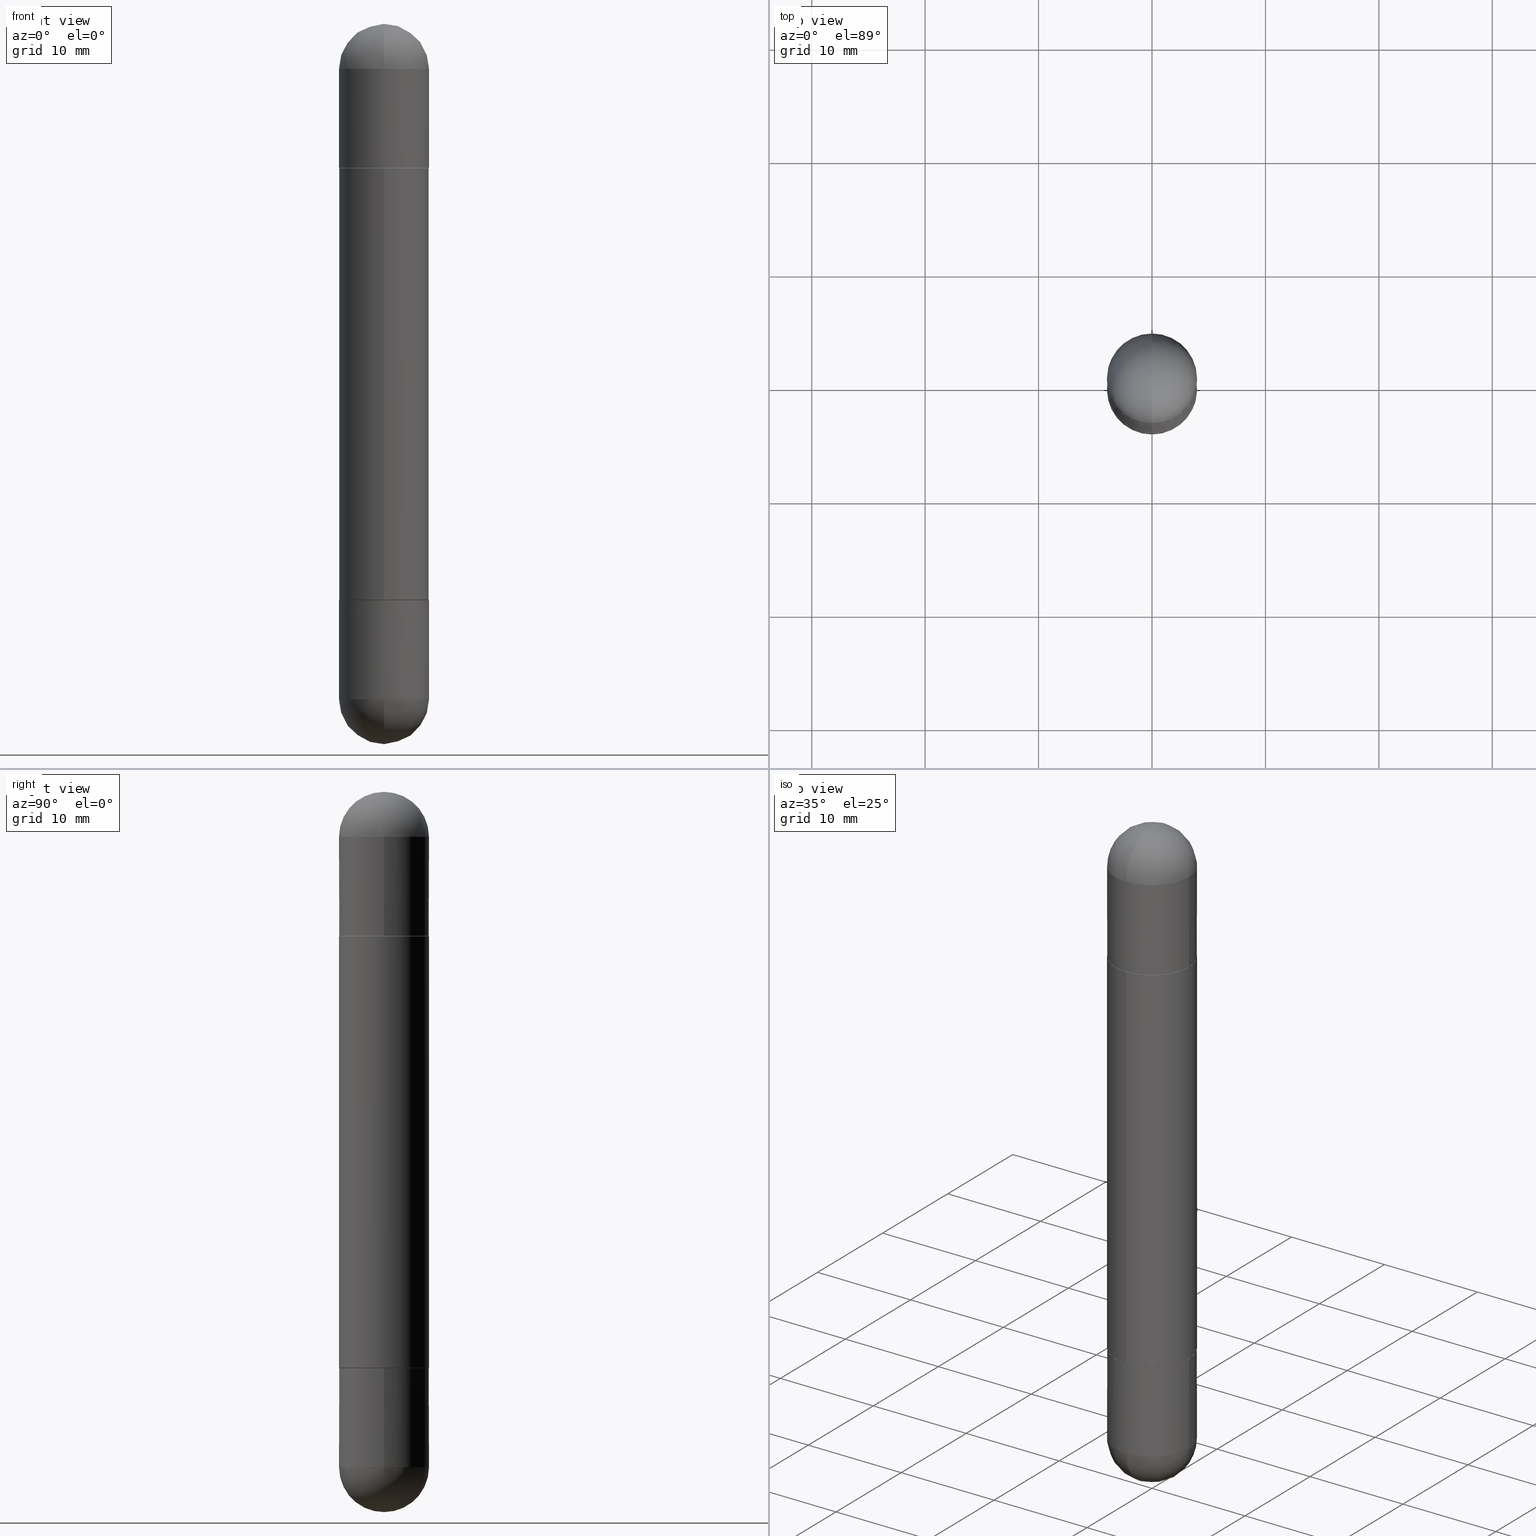
[diagram: canonical four-view strip — front | top / right | iso, engineering-drawing reading convention]
A machine part, canonical four-view strip (front | top / right | iso — engineering-drawing reading convention). The complete STEP part file that produces these views, byte-faithful:
ISO-10303-21;
HEADER;
FILE_DESCRIPTION (( 'STEP AP203' ),
    '1' );
FILE_NAME ('39634.STEP',
    '2024-03-01T12:43:34',
    ( '' ),
    ( '' ),
    'SwSTEP 2.0',
    'SolidWorks 2023',
    '' );
FILE_SCHEMA (( 'CONFIG_CONTROL_DESIGN' ));
ENDSEC;

DATA;
#1 = ORIENTED_EDGE ( 'NONE', *, *, #153, .F. ) ;
#2 = ORIENTED_EDGE ( 'NONE', *, *, #439, .F. ) ;
#3 = ORIENTED_EDGE ( 'NONE', *, *, #476, .T. ) ;
#4 = PERSON_AND_ORGANIZATION_ROLE ( 'design_owner' ) ;
#5 = ADVANCED_FACE ( 'NONE', ( #394 ), #583, .F. ) ;
#6 = AXIS2_PLACEMENT_3D ( 'NONE', #740, #366, #409 ) ;
#7 = CARTESIAN_POINT ( 'NONE',  ( 4.887936516085075525E-29, -6.980266886521744924E-15, -1.998999999999999888 ) ) ;
#8 = EDGE_CURVE ( 'NONE', #523, #546, #83, .T. ) ;
#9 = AXIS2_PLACEMENT_3D ( 'NONE', #92, #533, #404 ) ;
#10 = EDGE_CURVE ( 'NONE', #573, #451, #263, .T. ) ;
#11 = ORIENTED_EDGE ( 'NONE', *, *, #657, .T. ) ;
#12 = CARTESIAN_POINT ( 'NONE',  ( 5.789233224183170584E-29, -9.193318162129576161E-15, -3.073328992872296367E-16 ) ) ;
#13 = EDGE_CURVE ( 'NONE', #764, #256, #341, .T. ) ;
#14 = DIRECTION ( 'NONE',  ( 6.982962677686265922E-15, 1.000000000000000000, -3.496765431890251398E-15 ) ) ;
#15 = DIRECTION ( 'NONE',  ( -1.000000000000000000, 7.105427357601001070E-15, -4.926315508542082329E-29 ) ) ;
#16 = ORIENTED_EDGE ( 'NONE', *, *, #597, .F. ) ;
#17 = PLANE ( 'NONE',  #414 ) ;
#18 = DIRECTION ( 'NONE',  ( 1.000000000000000000, -6.982962677686269077E-15, 0.000000000000000000 ) ) ;
#19 = ORIENTED_EDGE ( 'NONE', *, *, #741, .T. ) ;
#20 = AXIS2_PLACEMENT_3D ( 'NONE', #459, #405, #663 ) ;
#21 = CIRCLE ( 'NONE', #629, 0.1562500000000000000 ) ;
#22 = LOCAL_TIME ( 7, 43, 34.00000000000000000, #367 ) ;
#23 = DIRECTION ( 'NONE',  ( -6.982962677686265922E-15, -1.000000000000000000, 0.000000000000000000 ) ) ;
#24 = CARTESIAN_POINT ( 'NONE',  ( 1.071952812151802595E-15, 0.1562500000000001388, -2.500000000000000000 ) ) ;
#25 = ORIENTED_EDGE ( 'NONE', *, *, #593, .T. ) ;
#26 = DIRECTION ( 'NONE',  ( 1.000000000000000000, -6.982962677686262766E-15, 0.000000000000000000 ) ) ;
#27 = CARTESIAN_POINT ( 'NONE',  ( 1.065092314154079104E-15, 0.1552499999999930047, -0.4999999999999998335 ) ) ;
#28 = DIRECTION ( 'NONE',  ( 1.000000000000000000, -6.982962677686269077E-15, 0.000000000000000000 ) ) ;
#29 = EDGE_CURVE ( 'NONE', #66, #622, #276, .T. ) ;
#30 = CARTESIAN_POINT ( 'NONE',  ( 0.000000000000000000, 0.000000000000000000, -2.500000000000000444 ) ) ;
#31 = VECTOR ( 'NONE', #727, 39.37007874015748143 ) ;
#32 = VERTEX_POINT ( 'NONE', #395 ) ;
#33 = EDGE_CURVE ( 'NONE', #238, #249, #285, .T. ) ;
#34 = VECTOR ( 'NONE', #482, 39.37007874015748854 ) ;
#35 = DIRECTION ( 'NONE',  ( -2.445190853469272491E-29, 3.491879382952348982E-15, -1.000000000000000000 ) ) ;
#36 = LOCAL_TIME ( 7, 43, 34.00000000000000000, #195 ) ;
#37 = DIRECTION ( 'NONE',  ( -2.445468806185136597E-29, 3.491481338843145583E-15, 1.000000000000000000 ) ) ;
#38 = CARTESIAN_POINT ( 'NONE',  ( 4.890381706938546103E-29, -6.983758765904698753E-15, -2.000000000000000444 ) ) ;
#39 = ORIENTED_EDGE ( 'NONE', *, *, #29, .T. ) ;
#40 = FACE_OUTER_BOUND ( 'NONE', #744, .T. ) ;
#41 = DIRECTION ( 'NONE',  ( -2.445190853469272491E-29, 3.491879382952348982E-15, -1.000000000000000000 ) ) ;
#42 = EDGE_CURVE ( 'NONE', #206, #325, #124, .T. ) ;
#43 = CARTESIAN_POINT ( 'NONE',  ( 5.731567514496413899E-29, -8.183159387913622595E-15, -0.1562500000000005551 ) ) ;
#44 = CARTESIAN_POINT ( 'NONE',  ( 5.789233224183170584E-29, -9.193318162129576161E-15, -3.073328992872296367E-16 ) ) ;
#45 = AXIS2_PLACEMENT_3D ( 'NONE', #550, #680, #474 ) ;
#46 = EDGE_LOOP ( 'NONE', ( #675, #300, #380, #811 ) ) ;
#47 = CIRCLE ( 'NONE', #714, 0.1552499999999999991 ) ;
#48 = AXIS2_PLACEMENT_3D ( 'NONE', #95, #679, #668 ) ;
#49 = FACE_OUTER_BOUND ( 'NONE', #619, .T. ) ;
#50 = VECTOR ( 'NONE', #264, 39.37007874015748143 ) ;
#51 = CARTESIAN_POINT ( 'NONE',  ( -0.1562500000000000000, -6.511108220648155468E-15, -0.5000000000000006661 ) ) ;
#52 = CARTESIAN_POINT ( 'NONE',  ( -1.091087918388432039E-15, -0.1562500000000072720, -0.5010000000000013332 ) ) ;
#53 = FACE_OUTER_BOUND ( 'NONE', #46, .T. ) ;
#54 = ORIENTED_EDGE ( 'NONE', *, *, #432, .F. ) ;
#55 = DATE_AND_TIME ( #620, #22 ) ;
#56 = DIRECTION ( 'NONE',  ( -2.445190853469272211E-29, 3.491879382952348982E-15, 1.000000000000000000 ) ) ;
#57 = EDGE_CURVE ( 'NONE', #631, #369, #720, .T. ) ;
#58 = CC_DESIGN_DATE_AND_TIME_ASSIGNMENT ( #55, #559, ( #222 ) ) ;
#59 = VERTEX_POINT ( 'NONE', #776 ) ;
#60 = CARTESIAN_POINT ( 'NONE',  ( 4.890381706938546103E-29, -6.983758765904698753E-15, -2.000000000000000444 ) ) ;
#61 = CIRCLE ( 'NONE', #480, 0.1562500000000002776 ) ;
#62 = AXIS2_PLACEMENT_3D ( 'NONE', #387, #503, #696 ) ;
#63 = LINE ( 'NONE', #318, #736 ) ;
#64 = CC_DESIGN_SECURITY_CLASSIFICATION ( #402, ( #165 ) ) ;
#65 = ORIENTED_EDGE ( 'NONE', *, *, #33, .T. ) ;
#66 = VERTEX_POINT ( 'NONE', #401 ) ;
#67 = LINE ( 'NONE', #616, #50 ) ;
#68 = CARTESIAN_POINT ( 'NONE',  ( 1.106670310946405735E-15, 0.1552499999999930047, -2.000000000000000888 ) ) ;
#69 = ORIENTED_EDGE ( 'NONE', *, *, #385, .T. ) ;
#70 = EDGE_LOOP ( 'NONE', ( #812, #183 ) ) ;
#71 = DIRECTION ( 'NONE',  ( -4.937700262164378437E-15, -0.7071067811865208164, 0.7071067811865739960 ) ) ;
#72 = ADVANCED_FACE ( 'NONE', ( #717 ), #93, .T. ) ;
#73 = ORIENTED_EDGE ( 'NONE', *, *, #175, .F. ) ;
#74 = FACE_OUTER_BOUND ( 'NONE', #694, .T. ) ;
#75 = APPROVAL ( #427, 'UNSPECIFIED' ) ;
#76 = ORIENTED_EDGE ( 'NONE', *, *, #329, .T. ) ;
#77 = AXIS2_PLACEMENT_3D ( 'NONE', #113, #423, #290 ) ;
#78 = FACE_OUTER_BOUND ( 'NONE', #90, .T. ) ;
#79 = CIRCLE ( 'NONE', #297, 0.1562500000000002776 ) ;
#80 = EDGE_LOOP ( 'NONE', ( #118, #321 ) ) ;
#81 = FACE_OUTER_BOUND ( 'NONE', #80, .T. ) ;
#82 = EDGE_LOOP ( 'NONE', ( #436, #298, #11, #69 ) ) ;
#83 = LINE ( 'NONE', #334, #411 ) ;
#84 = APPLICATION_CONTEXT ( 'configuration controlled 3d designs of mechanical parts and assemblies' ) ;
#85 = CARTESIAN_POINT ( 'NONE',  ( 1.071952812151852491E-15, 0.1562499999999932832, -0.5010000000000002229 ) ) ;
#86 = CARTESIAN_POINT ( 'NONE',  ( -1.084104955710744053E-15, -0.1552500000000069935, -1.999999999999999778 ) ) ;
#87 = DATE_AND_TIME ( #386, #444 ) ;
#88 = DIRECTION ( 'NONE',  ( -2.445190853469272491E-29, 3.491879382952348982E-15, -1.000000000000000000 ) ) ;
#89 = CARTESIAN_POINT ( 'NONE',  ( 5.400447736582527652E-29, -8.657341756053672891E-15, -2.343750000000000000 ) ) ;
#90 = EDGE_LOOP ( 'NONE', ( #565, #554, #770, #370 ) ) ;
#91 = AXIS2_PLACEMENT_3D ( 'NONE', #595, #337, #649 ) ;
#92 = CARTESIAN_POINT ( 'NONE',  ( 5.400447736582527652E-29, -8.657341756053672891E-15, -2.343750000000000000 ) ) ;
#93 = CYLINDRICAL_SURFACE ( 'NONE', #327, 0.1562500000000000000 ) ;
#94 = ADVANCED_FACE ( 'NONE', ( #157 ), #522, .F. ) ;
#95 = CARTESIAN_POINT ( 'NONE',  ( 3.056488566836591455E-29, -4.364849228690437312E-15, -1.250000000000000222 ) ) ;
#96 = LINE ( 'NONE', #27, #389 ) ;
#97 = EDGE_CURVE ( 'NONE', #624, #59, #574, .T. ) ;
#98 = CARTESIAN_POINT ( 'NONE',  ( -1.091087918388432039E-15, -0.1562500000000072720, -0.5010000000000013332 ) ) ;
#99 = CARTESIAN_POINT ( 'NONE',  ( 0.1562500000000000000, -1.091087918388479174E-15, -2.500000000000000444 ) ) ;
#100 = CIRCLE ( 'NONE', #209, 0.1562500000000000000 ) ;
#101 = EDGE_CURVE ( 'NONE', #622, #325, #723, .T. ) ;
#102 = ORIENTED_EDGE ( 'NONE', *, *, #129, .F. ) ;
#103 = DIRECTION ( 'NONE',  ( 2.445468806185136597E-29, -3.491481338843145583E-15, 1.000000000000000000 ) ) ;
#104 = FACE_OUTER_BOUND ( 'NONE', #429, .T. ) ;
#105 = DIRECTION ( 'NONE',  ( -6.982962677686265922E-15, -1.000000000000000000, -3.519288880726909138E-15 ) ) ;
#106 = ORIENTED_EDGE ( 'NONE', *, *, #766, .T. ) ;
#107 = CARTESIAN_POINT ( 'NONE',  ( 1.103117597267604244E-15, 0.1552499999999930047, -2.000000000000000888 ) ) ;
#108 = DIRECTION ( 'NONE',  ( -2.445468806185136597E-29, 3.491481338843145583E-15, 1.000000000000000000 ) ) ;
#109 = FACE_OUTER_BOUND ( 'NONE', #608, .T. ) ;
#110 = CIRCLE ( 'NONE', #6, 0.1552499999999999991 ) ;
#111 = AXIS2_PLACEMENT_3D ( 'NONE', #43, #242, #284 ) ;
#112 = SPHERICAL_SURFACE ( 'NONE', #589, 0.1562500000000002498 ) ;
#113 = CARTESIAN_POINT ( 'NONE',  ( 5.400447736582527652E-29, -8.657341756053672891E-15, -0.1562500000000005551 ) ) ;
#114 = ORIENTED_EDGE ( 'NONE', *, *, #594, .F. ) ;
#115 = EDGE_CURVE ( 'NONE', #274, #388, #150, .T. ) ;
#116 = APPROVAL_DATE_TIME ( #506, #75 ) ;
#117 = CARTESIAN_POINT ( 'NONE',  ( 1.071952812151851110E-15, 0.1562499999999957812, -1.250000000000000222 ) ) ;
#118 = ORIENTED_EDGE ( 'NONE', *, *, #13, .F. ) ;
#119 = FACE_OUTER_BOUND ( 'NONE', #434, .T. ) ;
#120 = ORIENTED_EDGE ( 'NONE', *, *, #417, .T. ) ;
#121 = EDGE_CURVE ( 'NONE', #789, #523, #96, .T. ) ;
#122 = ORIENTED_EDGE ( 'NONE', *, *, #115, .T. ) ;
#123 = LENGTH_MEASURE_WITH_UNIT ( LENGTH_MEASURE( 0.02539999999999999897 ), #816 );
#124 = CIRCLE ( 'NONE', #236, 0.1562500000000002498 ) ;
#125 = ORIENTED_EDGE ( 'NONE', *, *, #609, .F. ) ;
#126 = CIRCLE ( 'NONE', #671, 0.1562500000000002776 ) ;
#127 = DIRECTION ( 'NONE',  ( -2.445468806185136597E-29, 3.491481338843145583E-15, -1.000000000000000000 ) ) ;
#128 = EDGE_LOOP ( 'NONE', ( #633, #255, #420, #326 ) ) ;
#129 = EDGE_CURVE ( 'NONE', #451, #256, #147, .T. ) ;
#130 = EDGE_CURVE ( 'NONE', #802, #789, #250, .T. ) ;
#131 = ORIENTED_EDGE ( 'NONE', *, *, #392, .F. ) ;
#132 = DIRECTION ( 'NONE',  ( -1.000000000000000000, 6.982962677686265922E-15, 4.876176775795935793E-29 ) ) ;
#133 = EDGE_LOOP ( 'NONE', ( #199, #568, #241, #706 ) ) ;
#134 = ADVANCED_FACE ( 'NONE', ( #213 ), #655, .T. ) ;
#135 = APPROVAL_DATE_TIME ( #704, #742 ) ;
#136 = DIRECTION ( 'NONE',  ( -4.937700262164378437E-15, -0.7071067811865208164, -0.7071067811865739960 ) ) ;
#137 = PERSON_AND_ORGANIZATION ( #467, #228 ) ;
#138 = SPHERICAL_SURFACE ( 'NONE', #795, 0.1562500000000002498 ) ;
#139 = ORIENTED_EDGE ( 'NONE', *, *, #794, .F. ) ;
#140 = VECTOR ( 'NONE', #607, 39.37007874015748854 ) ;
#141 = DIRECTION ( 'NONE',  ( -2.445468806185136597E-29, 3.491481338843145583E-15, -1.000000000000000000 ) ) ;
#142 = AXIS2_PLACEMENT_3D ( 'NONE', #146, #585, #14 ) ;
#143 = DIRECTION ( 'NONE',  ( -6.982962677686265922E-15, -1.000000000000000000, -3.491879382952348982E-15 ) ) ;
#144 = CARTESIAN_POINT ( 'NONE',  ( -1.084104955710744053E-15, -0.1552500000000069935, -1.999999999999999778 ) ) ;
#145 = DIRECTION ( 'NONE',  ( 2.445468806185136597E-29, -3.491481338843145583E-15, 1.000000000000000000 ) ) ;
#146 = CARTESIAN_POINT ( 'NONE',  ( 5.400447736582527652E-29, -8.657341756053672891E-15, -2.343750000000000000 ) ) ;
#147 = LINE ( 'NONE', #338, #440 ) ;
#148 = APPROVAL_ROLE ( '' ) ;
#149 = CYLINDRICAL_SURFACE ( 'NONE', #179, 0.1562500000000000000 ) ;
#150 = CIRCLE ( 'NONE', #685, 0.1562500000000000000 ) ;
#151 = CARTESIAN_POINT ( 'NONE',  ( 0.1562500000000000000, -1.091087918388479174E-15, -2.500000000000000444 ) ) ;
#152 = CIRCLE ( 'NONE', #313, 0.1562500000000000000 ) ;
#153 = EDGE_CURVE ( 'NONE', #32, #393, #586, .T. ) ;
#154 = ADVANCED_FACE ( 'NONE', ( #756 ), #441, .T. ) ;
#155 = PRODUCT_RELATED_PRODUCT_CATEGORY ( 'detail', '', ( #360 ) ) ;
#156 = CARTESIAN_POINT ( 'NONE',  ( 5.731567514496413899E-29, -8.183159387913622595E-15, -0.1562500000000005551 ) ) ;
#157 = FACE_OUTER_BOUND ( 'NONE', #70, .T. ) ;
#158 = DIRECTION ( 'NONE',  ( -6.982962677686265922E-15, -1.000000000000000000, 3.519288880726909138E-15 ) ) ;
#159 = ADVANCED_FACE ( 'NONE', ( #322 ), #412, .T. ) ;
#160 = DIRECTION ( 'NONE',  ( -2.445190853469272491E-29, 3.491879382952348982E-15, -1.000000000000000000 ) ) ;
#161 = CARTESIAN_POINT ( 'NONE',  ( 5.400447736582527652E-29, -8.657341756053672891E-15, -0.1562500000000005551 ) ) ;
#162 = CARTESIAN_POINT ( 'NONE',  ( -1.091087918388440322E-15, -0.1562500000000045242, -1.250000000000000222 ) ) ;
#163 = VECTOR ( 'NONE', #779, 39.37007874015748143 ) ;
#164 = AXIS2_PLACEMENT_3D ( 'NONE', #801, #348, #598 ) ;
#165 = PRODUCT_DEFINITION_FORMATION_WITH_SPECIFIED_SOURCE ( 'ANY', '', #360, .NOT_KNOWN. ) ;
#166 = EDGE_LOOP ( 'NONE', ( #261, #800, #703, #603 ) ) ;
#167 = DIRECTION ( 'NONE',  ( 2.445468806185136597E-29, -3.491481338843145583E-15, 1.000000000000000000 ) ) ;
#168 = DIRECTION ( 'NONE',  ( -6.982962677686265922E-15, -1.000000000000000000, -3.496765431890253764E-15 ) ) ;
#169 = ORIENTED_EDGE ( 'NONE', *, *, #10, .F. ) ;
#170 = CARTESIAN_POINT ( 'NONE',  ( 4.890381706938546103E-29, -6.983758765904698753E-15, -2.000000000000000444 ) ) ;
#171 = CARTESIAN_POINT ( 'NONE',  ( 0.000000000000000000, 0.000000000000000000, 0.000000000000000000 ) ) ;
#172 = VERTEX_POINT ( 'NONE', #162 ) ;
#173 = CARTESIAN_POINT ( 'NONE',  ( 0.000000000000000000, 0.000000000000000000, 0.000000000000000000 ) ) ;
#174 = CARTESIAN_POINT ( 'NONE',  ( -1.071952812151746981E-15, -0.1562500000000085487, -0.1562500000000011102 ) ) ;
#175 = EDGE_CURVE ( 'NONE', #541, #274, #697, .T. ) ;
#176 = ORIENTED_EDGE ( 'NONE', *, *, #153, .T. ) ;
#177 = CIRCLE ( 'NONE', #493, 0.1562500000000002498 ) ;
#178 = ORIENTED_EDGE ( 'NONE', *, *, #301, .F. ) ;
#179 = AXIS2_PLACEMENT_3D ( 'NONE', #711, #141, #391 ) ;
#180 = COORDINATED_UNIVERSAL_TIME_OFFSET ( 5, 0, .BEHIND. ) ;
#181 = EDGE_CURVE ( 'NONE', #388, #764, #797, .T. ) ;
#182 = CARTESIAN_POINT ( 'NONE',  ( 4.890937612370273194E-29, -6.982962677686291165E-15, -0.5000000000000006661 ) ) ;
#183 = ORIENTED_EDGE ( 'NONE', *, *, #731, .F. ) ;
#184 = PERSON_AND_ORGANIZATION ( #467, #228 ) ;
#185 = FACE_OUTER_BOUND ( 'NONE', #243, .T. ) ;
#186 = ORIENTED_EDGE ( 'NONE', *, *, #667, .F. ) ;
#187 = ORIENTED_EDGE ( 'NONE', *, *, #507, .F. ) ;
#188 = EDGE_CURVE ( 'NONE', #789, #802, #110, .T. ) ;
#189 = DIRECTION ( 'NONE',  ( -6.982962677686265922E-15, -1.000000000000000000, 3.491879382952348982E-15 ) ) ;
#190 = VERTEX_POINT ( 'NONE', #483 ) ;
#191 = DIRECTION ( 'NONE',  ( 4.851104656540797036E-15, 0.7071067811865257013, -0.7071067811865691111 ) ) ;
#192 = CLOSED_SHELL ( 'NONE', ( #628, #134, #817, #639, #154 ) ) ;
#193 = ORIENTED_EDGE ( 'NONE', *, *, #609, .T. ) ;
#194 = VECTOR ( 'NONE', #71, 39.37007874015748854 ) ;
#195 = COORDINATED_UNIVERSAL_TIME_OFFSET ( 5, 0, .BEHIND. ) ;
#196 = AXIS2_PLACEMENT_3D ( 'NONE', #772, #277, #26 ) ;
#197 = DIRECTION ( 'NONE',  ( -6.982962677686265922E-15, -1.000000000000000000, -3.519288880726909138E-15 ) ) ;
#198 = CONICAL_SURFACE ( 'NONE', #552, 0.1552499999999999991, 0.7853981633974141952 ) ;
#199 = ORIENTED_EDGE ( 'NONE', *, *, #686, .F. ) ;
#200 = ORIENTED_EDGE ( 'NONE', *, *, #8, .F. ) ;
#201 = DIRECTION ( 'NONE',  ( -6.982962677686265922E-15, -1.000000000000000000, 3.496765431890250609E-15 ) ) ;
#202 = EDGE_LOOP ( 'NONE', ( #54, #186, #114, #176, #267 ) ) ;
#203 = ORIENTED_EDGE ( 'NONE', *, *, #269, .T. ) ;
#204 = PERSON_AND_ORGANIZATION_ROLE ( 'classification_officer' ) ;
#205 = DIRECTION ( 'NONE',  ( -2.445190853469272491E-29, 3.491879382952348982E-15, -1.000000000000000000 ) ) ;
#206 = VERTEX_POINT ( 'NONE', #602 ) ;
#207 = EDGE_CURVE ( 'NONE', #804, #59, #677, .T. ) ;
#208 = AXIS2_PLACEMENT_3D ( 'NONE', #652, #715, #143 ) ;
#209 = AXIS2_PLACEMENT_3D ( 'NONE', #818, #446, #309 ) ;
#210 = CARTESIAN_POINT ( 'NONE',  ( 5.731567514496413899E-29, -8.183159387913622595E-15, -0.1562500000000005551 ) ) ;
#211 = ADVANCED_FACE ( 'NONE', ( #295 ), #735, .T. ) ;
#212 = AXIS2_PLACEMENT_3D ( 'NONE', #769, #205, #453 ) ;
#213 = FACE_OUTER_BOUND ( 'NONE', #384, .T. ) ;
#214 = DIRECTION ( 'NONE',  ( 2.445468806185136597E-29, -3.491481338843145583E-15, 1.000000000000000000 ) ) ;
#215 = ADVANCED_FACE ( 'NONE', ( #104 ), #490, .F. ) ;
#216 = DIRECTION ( 'NONE',  ( -2.445468806185136597E-29, 3.491481338843145583E-15, 1.000000000000000000 ) ) ;
#217 = UNCERTAINTY_MEASURE_WITH_UNIT (LENGTH_MEASURE( 1.000000000000000082E-05 ), #751, 'distance_accuracy_value', 'NONE');
#218 = MANIFOLD_SOLID_BREP ( 'Combine1', #455 ) ;
#219 = CARTESIAN_POINT ( 'NONE',  ( -0.1562500000000000000, -6.472838008174800734E-15, -2.343750000000000000 ) ) ;
#220 = ADVANCED_FACE ( 'NONE', ( #109 ), #803, .T. ) ;
#221 = DIRECTION ( 'NONE',  ( 1.000000000000000000, -6.982962677686266711E-15, 0.000000000000000000 ) ) ;
#222 = PRODUCT_DEFINITION ( 'UNKNOWN', '', #165, #734 ) ;
#223 = MANIFOLD_SOLID_BREP ( 'Mirror4[1]', #548 ) ;
#224 = CARTESIAN_POINT ( 'NONE',  ( 1.071952812151833755E-15, 0.1562499999999933109, -1.999000000000000554 ) ) ;
#225 = AXIS2_PLACEMENT_3D ( 'NONE', #450, #372, #556 ) ;
#226 = CARTESIAN_POINT ( 'NONE',  ( 5.731567514496413899E-29, -8.183159387913622595E-15, -2.343750000000000000 ) ) ;
#227 = AXIS2_PLACEMENT_3D ( 'NONE', #156, #214, #662 ) ;
#228 = ORGANIZATION ( 'UNSPECIFIED', 'UNSPECIFIED', '' ) ;
#229 = CARTESIAN_POINT ( 'NONE',  ( 0.000000000000000000, 0.000000000000000000, -1.250000000000000222 ) ) ;
#230 = MANIFOLD_SOLID_BREP ( 'Mirror4[4]', #643 ) ;
#231 = CARTESIAN_POINT ( 'NONE',  ( 0.000000000000000000, 0.000000000000000000, -2.500000000000000444 ) ) ;
#232 = DIRECTION ( 'NONE',  ( 1.000000000000000000, -6.982962677686262766E-15, 0.000000000000000000 ) ) ;
#233 = CARTESIAN_POINT ( 'NONE',  ( -0.1562500000000000000, -6.472838008174799945E-15, -2.000000000000000000 ) ) ;
#234 = CARTESIAN_POINT ( 'NONE',  ( 0.1562500000000000000, -8.074050596074770339E-15, -0.5000000000000006661 ) ) ;
#235 = DIRECTION ( 'NONE',  ( 6.982962677686265922E-15, 1.000000000000000000, 3.496765431890251398E-15 ) ) ;
#236 = AXIS2_PLACEMENT_3D ( 'NONE', #89, #15, #283 ) ;
#237 = AXIS2_PLACEMENT_3D ( 'NONE', #324, #127, #560 ) ;
#238 = VERTEX_POINT ( 'NONE', #233 ) ;
#239 = DIRECTION ( 'NONE',  ( -2.445190853469272491E-29, 3.491879382952348982E-15, -1.000000000000000000 ) ) ;
#240 = DIRECTION ( 'NONE',  ( -2.445468806185136877E-29, 3.491481338843145188E-15, -1.000000000000000000 ) ) ;
#241 = ORIENTED_EDGE ( 'NONE', *, *, #729, .F. ) ;
#242 = DIRECTION ( 'NONE',  ( 2.445468806185136597E-29, -3.491481338843145583E-15, 1.000000000000000000 ) ) ;
#243 = EDGE_LOOP ( 'NONE', ( #484, #448 ) ) ;
#244 = DIRECTION ( 'NONE',  ( 1.000000000000000000, -6.982962677686265922E-15, -4.883557194083112340E-29 ) ) ;
#245 = EDGE_CURVE ( 'NONE', #333, #698, #611, .T. ) ;
#246 = ADVANCED_FACE ( 'NONE', ( #785 ), #618, .F. ) ;
#247 = DIRECTION ( 'NONE',  ( 1.000000000000000000, 0.000000000000000000, 0.000000000000000000 ) ) ;
#248 = DIRECTION ( 'NONE',  ( 1.000000000000000000, -6.982962677686265922E-15, -4.883557194083112340E-29 ) ) ;
#249 = VERTEX_POINT ( 'NONE', #788 ) ;
#250 = CIRCLE ( 'NONE', #713, 0.1552499999999999991 ) ;
#251 = AXIS2_PLACEMENT_3D ( 'NONE', #775, #88, #282 ) ;
#252 = CIRCLE ( 'NONE', #315, 0.1552499999999999991 ) ;
#253 = APPROVAL_STATUS ( 'not_yet_approved' ) ;
#254 = DIRECTION ( 'NONE',  ( -6.982962677686265922E-15, -1.000000000000000000, -3.496765431890250609E-15 ) ) ;
#255 = ORIENTED_EDGE ( 'NONE', *, *, #385, .F. ) ;
#256 = VERTEX_POINT ( 'NONE', #51 ) ;
#257 = CARTESIAN_POINT ( 'NONE',  ( 4.890381706938546103E-29, -6.983758765904698753E-15, -0.5000000000000004441 ) ) ;
#258 = ORIENTED_EDGE ( 'NONE', *, *, #101, .T. ) ;
#259 =( NAMED_UNIT ( * ) PLANE_ANGLE_UNIT ( ) SI_UNIT ( $, .RADIAN. ) );
#260 = CARTESIAN_POINT ( 'NONE',  ( 4.890381706938545543E-29, -6.983758765904697175E-15, -2.000000000000000000 ) ) ;
#261 = ORIENTED_EDGE ( 'NONE', *, *, #417, .F. ) ;
#262 = VERTEX_POINT ( 'NONE', #738 ) ;
#263 = CIRCLE ( 'NONE', #20, 0.1562500000000000000 ) ;
#264 = DIRECTION ( 'NONE',  ( -2.445468806185136877E-29, 3.491481338843145188E-15, 1.000000000000000000 ) ) ;
#265 = CIRCLE ( 'NONE', #196, 0.1562500000000000000 ) ;
#266 = DIRECTION ( 'NONE',  ( -2.445190853469272491E-29, 3.491879382952348982E-15, 1.000000000000000000 ) ) ;
#267 = ORIENTED_EDGE ( 'NONE', *, *, #683, .T. ) ;
#268 = CARTESIAN_POINT ( 'NONE',  ( 5.731567514496413899E-29, -8.183159387913622595E-15, -0.1562500000000005551 ) ) ;
#269 = EDGE_CURVE ( 'NONE', #541, #573, #177, .T. ) ;
#270 = ADVANCED_FACE ( 'NONE', ( #305 ), #792, .T. ) ;
#271 = SHAPE_DEFINITION_REPRESENTATION ( #746, #437 ) ;
#272 = DIRECTION ( 'NONE',  ( 4.851104656540797036E-15, 0.7071067811865257013, -0.7071067811865691111 ) ) ;
#273 = DIRECTION ( 'NONE',  ( 2.438088387897960049E-29, -3.491481338843145188E-15, 1.000000000000000000 ) ) ;
#274 = VERTEX_POINT ( 'NONE', #174 ) ;
#275 = SECURITY_CLASSIFICATION_LEVEL ( 'unclassified' ) ;
#276 = CIRCLE ( 'NONE', #478, 0.1562500000000000000 ) ;
#277 = DIRECTION ( 'NONE',  ( 2.445468806185136597E-29, -3.491481338843145583E-15, 1.000000000000000000 ) ) ;
#278 = CARTESIAN_POINT ( 'NONE',  ( 1.091087918388527886E-15, 0.1562499999999930334, -0.5000000000000001110 ) ) ;
#279 = ADVANCED_FACE ( 'NONE', ( #53 ), #540, .T. ) ;
#280 = CARTESIAN_POINT ( 'NONE',  ( 5.731567514496413899E-29, -8.183159387913622595E-15, -0.1562500000000005551 ) ) ;
#281 = ORIENTED_EDGE ( 'NONE', *, *, #476, .F. ) ;
#282 = DIRECTION ( 'NONE',  ( -6.982962677686265922E-15, -1.000000000000000000, -3.496765431890253764E-15 ) ) ;
#283 = DIRECTION ( 'NONE',  ( -7.105427357601000281E-15, -1.000000000000000000, 0.000000000000000000 ) ) ;
#284 = DIRECTION ( 'NONE',  ( 1.000000000000000000, -6.982962677686262766E-15, 0.000000000000000000 ) ) ;
#285 = CIRCLE ( 'NONE', #759, 0.1562500000000000000 ) ;
#286 = DIRECTION ( 'NONE',  ( -2.445468806185136877E-29, 3.491481338843145188E-15, -1.000000000000000000 ) ) ;
#287 = AXIS2_PLACEMENT_3D ( 'NONE', #229, #292, #361 ) ;
#288 = CIRCLE ( 'NONE', #563, 0.1562500000000002498 ) ;
#289 = CYLINDRICAL_SURFACE ( 'NONE', #164, 0.1562500000000001388 ) ;
#290 = DIRECTION ( 'NONE',  ( 6.860497997771530774E-15, 1.000000000000000000, 0.000000000000000000 ) ) ;
#291 = VERTEX_POINT ( 'NONE', #358 ) ;
#292 = DIRECTION ( 'NONE',  ( 0.000000000000000000, 0.000000000000000000, 1.000000000000000000 ) ) ;
#293 = DIRECTION ( 'NONE',  ( -1.000000000000000000, 6.982962677686265922E-15, 4.883557194083112340E-29 ) ) ;
#294 = DIRECTION ( 'NONE',  ( -2.445190853469272491E-29, 3.491879382952348982E-15, 1.000000000000000000 ) ) ;
#295 = FACE_OUTER_BOUND ( 'NONE', #702, .T. ) ;
#296 = CIRCLE ( 'NONE', #390, 0.1562500000000000000 ) ;
#297 = AXIS2_PLACEMENT_3D ( 'NONE', #396, #400, #718 ) ;
#298 = ORIENTED_EDGE ( 'NONE', *, *, #245, .F. ) ;
#299 = AXIS2_PLACEMENT_3D ( 'NONE', #435, #632, #247 ) ;
#300 = ORIENTED_EDGE ( 'NONE', *, *, #8, .T. ) ;
#301 = EDGE_CURVE ( 'NONE', #403, #546, #416, .T. ) ;
#302 = CYLINDRICAL_SURFACE ( 'NONE', #647, 0.1562500000000001388 ) ;
#303 = VERTEX_POINT ( 'NONE', #44 ) ;
#304 = ADVANCED_FACE ( 'NONE', ( #621 ), #600, .T. ) ;
#305 = FACE_OUTER_BOUND ( 'NONE', #678, .T. ) ;
#306 = APPROVAL ( #584, 'UNSPECIFIED' ) ;
#307 = CYLINDRICAL_SURFACE ( 'NONE', #251, 0.1562500000000001388 ) ;
#308 = ORIENTED_EDGE ( 'NONE', *, *, #181, .T. ) ;
#309 = DIRECTION ( 'NONE',  ( 1.000000000000000000, -6.982962677686262766E-15, 0.000000000000000000 ) ) ;
#310 = ORIENTED_EDGE ( 'NONE', *, *, #121, .T. ) ;
#311 = VECTOR ( 'NONE', #708, 39.37007874015748143 ) ;
#312 = ORIENTED_EDGE ( 'NONE', *, *, #521, .F. ) ;
#313 = AXIS2_PLACEMENT_3D ( 'NONE', #590, #726, #581 ) ;
#314 = ORIENTED_EDGE ( 'NONE', *, *, #447, .F. ) ;
#315 = AXIS2_PLACEMENT_3D ( 'NONE', #60, #382, #566 ) ;
#316 = FACE_OUTER_BOUND ( 'NONE', #491, .T. ) ;
#317 = ORIENTED_EDGE ( 'NONE', *, *, #784, .T. ) ;
#318 = CARTESIAN_POINT ( 'NONE',  ( -0.1562500000000000000, 1.071952812151801807E-15, -2.500000000000000444 ) ) ;
#319 = ORIENTED_EDGE ( 'NONE', *, *, #13, .T. ) ;
#320 = CARTESIAN_POINT ( 'NONE',  ( -1.071952812151746981E-15, -0.1562500000000085487, -0.1562500000000011102 ) ) ;
#321 = ORIENTED_EDGE ( 'NONE', *, *, #329, .F. ) ;
#322 = FACE_OUTER_BOUND ( 'NONE', #82, .T. ) ;
#323 = ORIENTED_EDGE ( 'NONE', *, *, #245, .T. ) ;
#324 = CARTESIAN_POINT ( 'NONE',  ( 0.000000000000000000, 0.000000000000000000, -2.500000000000000444 ) ) ;
#325 = VERTEX_POINT ( 'NONE', #430 ) ;
#326 = ORIENTED_EDGE ( 'NONE', *, *, #766, .F. ) ;
#327 = AXIS2_PLACEMENT_3D ( 'NONE', #30, #468, #221 ) ;
#328 = CIRCLE ( 'NONE', #9, 0.1562500000000002498 ) ;
#329 = EDGE_CURVE ( 'NONE', #256, #764, #352, .T. ) ;
#330 = LINE ( 'NONE', #346, #809 ) ;
#331 = EDGE_LOOP ( 'NONE', ( #426, #757, #700, #815 ) ) ;
#332 = CARTESIAN_POINT ( 'NONE',  ( 1.091087918388527886E-15, 0.1562499999999930334, -0.5000000000000001110 ) ) ;
#333 = VERTEX_POINT ( 'NONE', #810 ) ;
#334 = CARTESIAN_POINT ( 'NONE',  ( 1.071952812151802595E-15, 0.1562500000000001388, -2.500000000000000000 ) ) ;
#335 = ADVANCED_FACE ( 'NONE', ( #185 ), #428, .F. ) ;
#336 = APPLICATION_CONTEXT ( 'configuration controlled 3d designs of mechanical parts and assemblies' ) ;
#337 = DIRECTION ( 'NONE',  ( -1.000000000000000000, 6.982962677686265922E-15, -4.883557194083112340E-29 ) ) ;
#338 = CARTESIAN_POINT ( 'NONE',  ( -0.1562500000000000000, 1.071952812151801807E-15, -2.500000000000000444 ) ) ;
#339 = EDGE_CURVE ( 'NONE', #325, #438, #100, .T. ) ;
#340 = CALENDAR_DATE ( 2024, 1, 3 ) ;
#341 = CIRCLE ( 'NONE', #644, 0.1562500000000000000 ) ;
#342 = CARTESIAN_POINT ( 'NONE',  ( 5.400447736582527652E-29, -8.657341756053672891E-15, -0.1562500000000005551 ) ) ;
#343 = AXIS2_PLACEMENT_3D ( 'NONE', #170, #737, #158 ) ;
#344 = CARTESIAN_POINT ( 'NONE',  ( 5.400447736582527652E-29, -8.657341756053672891E-15, -0.1562500000000005551 ) ) ;
#345 = ORIENTED_EDGE ( 'NONE', *, *, #97, .T. ) ;
#346 = CARTESIAN_POINT ( 'NONE',  ( 1.065092314154079104E-15, 0.1552499999999930047, -0.4999999999999998335 ) ) ;
#347 = DIRECTION ( 'NONE',  ( -2.445468806185136597E-29, 3.491481338843145583E-15, 1.000000000000000000 ) ) ;
#348 = DIRECTION ( 'NONE',  ( -2.445190853469272491E-29, 3.491879382952348982E-15, -1.000000000000000000 ) ) ;
#349 = CARTESIAN_POINT ( 'NONE',  ( 4.890937612370273194E-29, -6.982962677686291165E-15, -0.5000000000000006661 ) ) ;
#350 = DIRECTION ( 'NONE',  ( 2.445190853469272491E-29, -3.491879382952348982E-15, 1.000000000000000000 ) ) ;
#351 = EDGE_CURVE ( 'NONE', #523, #804, #670, .T. ) ;
#352 = CIRCLE ( 'NONE', #808, 0.1562500000000000000 ) ;
#353 = CARTESIAN_POINT ( 'NONE',  ( 5.400447736582527652E-29, -8.657341756053672891E-15, -0.1562500000000005551 ) ) ;
#354 = CIRCLE ( 'NONE', #761, 0.1562500000000000000 ) ;
#355 = EDGE_CURVE ( 'NONE', #767, #172, #750, .T. ) ;
#356 = DIRECTION ( 'NONE',  ( 1.000000000000000000, -6.860497997771530774E-15, -4.840798879624142912E-29 ) ) ;
#357 = DIRECTION ( 'NONE',  ( -6.982962677686265922E-15, -1.000000000000000000, -3.496765431890253764E-15 ) ) ;
#358 = CARTESIAN_POINT ( 'NONE',  ( -0.1562500000000000000, -6.511108220648155468E-15, -0.5000000000000006661 ) ) ;
#359 = ADVANCED_FACE ( 'NONE', ( #74 ), #634, .T. ) ;
#360 = PRODUCT ( '39634', '39634', '', ( #748 ) ) ;
#361 = DIRECTION ( 'NONE',  ( -1.000000000000000000, 0.000000000000000000, 0.000000000000000000 ) ) ;
#362 = DIRECTION ( 'NONE',  ( 1.000000000000000000, -6.982962677686266711E-15, 4.876176775795936353E-29 ) ) ;
#363 = AXIS2_PLACEMENT_3D ( 'NONE', #687, #160, #730 ) ;
#364 = AXIS2_PLACEMENT_3D ( 'NONE', #488, #167, #28 ) ;
#365 = CARTESIAN_POINT ( 'NONE',  ( 5.400447736582527652E-29, -8.657341756053672891E-15, -0.1562500000000005551 ) ) ;
#366 = DIRECTION ( 'NONE',  ( 2.445190853469272491E-29, -3.491879382952348982E-15, 1.000000000000000000 ) ) ;
#367 = COORDINATED_UNIVERSAL_TIME_OFFSET ( 5, 0, .BEHIND. ) ;
#368 = LINE ( 'NONE', #752, #494 ) ;
#369 = VERTEX_POINT ( 'NONE', #117 ) ;
#370 = ORIENTED_EDGE ( 'NONE', *, *, #29, .F. ) ;
#371 = APPLICATION_PROTOCOL_DEFINITION ( 'international standard', 'config_control_design', 1994, #336 ) ;
#372 = DIRECTION ( 'NONE',  ( -2.445190853469272491E-29, 3.491879382952348982E-15, -1.000000000000000000 ) ) ;
#373 = ORIENTED_EDGE ( 'NONE', *, *, #97, .F. ) ;
#374 = AXIS2_PLACEMENT_3D ( 'NONE', #701, #381, #636 ) ;
#375 = ORIENTED_EDGE ( 'NONE', *, *, #784, .F. ) ;
#376 = CONICAL_SURFACE ( 'NONE', #699, 0.1552499999999999991, 0.7853981633974141952 ) ;
#377 = LOCAL_TIME ( 7, 43, 34.00000000000000000, #180 ) ;
#378 = EDGE_LOOP ( 'NONE', ( #485, #310, #709, #2 ) ) ;
#379 = CARTESIAN_POINT ( 'NONE',  ( 0.1562500000000000000, -8.674148951188436448E-15, -0.1562500000000005551 ) ) ;
#380 = ORIENTED_EDGE ( 'NONE', *, *, #507, .T. ) ;
#381 = DIRECTION ( 'NONE',  ( -2.445468806185136597E-29, 3.491481338843145583E-15, -1.000000000000000000 ) ) ;
#382 = DIRECTION ( 'NONE',  ( -2.445190853469272491E-29, 3.491879382952348982E-15, 1.000000000000000000 ) ) ;
#383 = CARTESIAN_POINT ( 'NONE',  ( -0.1562500000000000000, -6.511108220648156257E-15, -0.1562500000000005551 ) ) ;
#384 = EDGE_LOOP ( 'NONE', ( #564, #640, #122, #25 ) ) ;
#385 = EDGE_CURVE ( 'NONE', #767, #631, #61, .T. ) ;
#386 = CALENDAR_DATE ( 2024, 1, 3 ) ;
#387 = CARTESIAN_POINT ( 'NONE',  ( 4.887936516085075525E-29, -6.980266886521744924E-15, -0.5010000000000007780 ) ) ;
#388 = VERTEX_POINT ( 'NONE', #379 ) ;
#389 = VECTOR ( 'NONE', #191, 39.37007874015748854 ) ;
#390 = AXIS2_PLACEMENT_3D ( 'NONE', #739, #37, #232 ) ;
#391 = DIRECTION ( 'NONE',  ( 1.000000000000000000, -6.982962677686266711E-15, 0.000000000000000000 ) ) ;
#392 = EDGE_CURVE ( 'NONE', #438, #249, #368, .T. ) ;
#393 = VERTEX_POINT ( 'NONE', #692 ) ;
#394 = FACE_OUTER_BOUND ( 'NONE', #650, .T. ) ;
#395 = CARTESIAN_POINT ( 'NONE',  ( 0.1562500000000000000, -8.674148951188436448E-15, -0.1562500000000005551 ) ) ;
#396 = CARTESIAN_POINT ( 'NONE',  ( 4.887936516085075525E-29, -6.980266886521744924E-15, -1.998999999999999888 ) ) ;
#397 = DIRECTION ( 'NONE',  ( -6.982962677686265922E-15, -1.000000000000000000, -3.519288880726909138E-15 ) ) ;
#398 = COORDINATED_UNIVERSAL_TIME_OFFSET ( 5, 0, .BEHIND. ) ;
#399 = CONICAL_SURFACE ( 'NONE', #212, 0.1552499999999999991, 0.7853981633974141952 ) ;
#400 = DIRECTION ( 'NONE',  ( -2.445190853469272491E-29, 3.491879382952348982E-15, 1.000000000000000000 ) ) ;
#401 = CARTESIAN_POINT ( 'NONE',  ( 1.091087918388535577E-15, 0.1562499999999916733, -2.343750000000000444 ) ) ;
#402 = SECURITY_CLASSIFICATION ( '', '', #275 ) ;
#403 = VERTEX_POINT ( 'NONE', #68 ) ;
#404 = DIRECTION ( 'NONE',  ( 6.982962677686265922E-15, 1.000000000000000000, 0.000000000000000000 ) ) ;
#405 = DIRECTION ( 'NONE',  ( 2.445468806185136597E-29, -3.491481338843145583E-15, 1.000000000000000000 ) ) ;
#406 = ORIENTED_EDGE ( 'NONE', *, *, #130, .F. ) ;
#407 = ADVANCED_FACE ( 'NONE', ( #119 ), #138, .T. ) ;
#408 = CARTESIAN_POINT ( 'NONE',  ( 4.890937612370273194E-29, -6.982962677686291165E-15, -0.5000000000000006661 ) ) ;
#409 = DIRECTION ( 'NONE',  ( -6.982962677686265922E-15, -1.000000000000000000, -3.519288880726909138E-15 ) ) ;
#410 = CARTESIAN_POINT ( 'NONE',  ( 4.887936516085075525E-29, -6.980266886521744924E-15, -0.5010000000000007780 ) ) ;
#411 = VECTOR ( 'NONE', #35, 39.37007874015748143 ) ;
#412 = CONICAL_SURFACE ( 'NONE', #363, 0.1552499999999999991, 0.7853981633974141952 ) ;
#413 = CARTESIAN_POINT ( 'NONE',  ( 4.890381706938545543E-29, -6.983758765904697175E-15, -0.5000000000000006661 ) ) ;
#414 = AXIS2_PLACEMENT_3D ( 'NONE', #332, #787, #672 ) ;
#415 = DIRECTION ( 'NONE',  ( -0.000000000000000000, -0.000000000000000000, -1.000000000000000000 ) ) ;
#416 = LINE ( 'NONE', #107, #140 ) ;
#417 = EDGE_CURVE ( 'NONE', #698, #333, #47, .T. ) ;
#418 = CC_DESIGN_PERSON_AND_ORGANIZATION_ASSIGNMENT ( #777, #592, ( #165 ) ) ;
#419 = CARTESIAN_POINT ( 'NONE',  ( 3.056488566836591455E-29, -4.364849228690437312E-15, -1.250000000000000222 ) ) ;
#420 = ORIENTED_EDGE ( 'NONE', *, *, #355, .T. ) ;
#421 = DIRECTION ( 'NONE',  ( -6.982962677686265922E-15, -1.000000000000000000, -3.491879382952348982E-15 ) ) ;
#422 = DIRECTION ( 'NONE',  ( 6.982962677686265922E-15, 1.000000000000000000, 3.496765431890251398E-15 ) ) ;
#423 = DIRECTION ( 'NONE',  ( 1.000000000000000000, -6.860497997771530774E-15, -4.840798879624142912E-29 ) ) ;
#424 = AXIS2_PLACEMENT_3D ( 'NONE', #278, #273, #132 ) ;
#425 = CIRCLE ( 'NONE', #62, 0.1562500000000002776 ) ;
#426 = ORIENTED_EDGE ( 'NONE', *, *, #42, .F. ) ;
#427 = APPROVAL_STATUS ( 'not_yet_approved' ) ;
#428 = PLANE ( 'NONE',  #456 ) ;
#429 = EDGE_LOOP ( 'NONE', ( #323, #120 ) ) ;
#430 = CARTESIAN_POINT ( 'NONE',  ( -1.110223024625101517E-15, -0.1562500000000085487, -2.343749999999999556 ) ) ;
#431 = DIMENSIONAL_EXPONENTS ( 1.000000000000000000, 0.000000000000000000, 0.000000000000000000, 0.000000000000000000, 0.000000000000000000, 0.000000000000000000, 0.000000000000000000 ) ;
#432 = EDGE_CURVE ( 'NONE', #262, #291, #63, .T. ) ;
#433 = ORIENTED_EDGE ( 'NONE', *, *, #729, .T. ) ;
#434 = EDGE_LOOP ( 'NONE', ( #16, #317, #529, #635 ) ) ;
#435 = CARTESIAN_POINT ( 'NONE',  ( 0.000000000000000000, 0.000000000000000000, 0.000000000000000000 ) ) ;
#436 = ORIENTED_EDGE ( 'NONE', *, *, #557, .F. ) ;
#437 = ADVANCED_BREP_SHAPE_REPRESENTATION ( '39634', ( #487, #223, #481, #230, #218, #299 ), #725 ) ;
#438 = VERTEX_POINT ( 'NONE', #567 ) ;
#439 = EDGE_CURVE ( 'NONE', #802, #804, #705, .T. ) ;
#440 = VECTOR ( 'NONE', #286, 39.37007874015748143 ) ;
#441 = CYLINDRICAL_SURFACE ( 'NONE', #374, 0.1562500000000000000 ) ;
#442 = ORIENTED_EDGE ( 'NONE', *, *, #188, .T. ) ;
#443 = AXIS2_PLACEMENT_3D ( 'NONE', #410, #350, #606 ) ;
#444 = LOCAL_TIME ( 7, 43, 34.00000000000000000, #518 ) ;
#445 = CALENDAR_DATE ( 2024, 1, 3 ) ;
#446 = DIRECTION ( 'NONE',  ( -2.445468806185136597E-29, 3.491481338843145583E-15, 1.000000000000000000 ) ) ;
#447 = EDGE_CURVE ( 'NONE', #804, #523, #425, .T. ) ;
#448 = ORIENTED_EDGE ( 'NONE', *, *, #681, .F. ) ;
#449 = CC_DESIGN_PERSON_AND_ORGANIZATION_ASSIGNMENT ( #637, #813, ( #222 ) ) ;
#450 = CARTESIAN_POINT ( 'NONE',  ( 4.890381706938546103E-29, -6.983758765904698753E-15, -0.5000000000000004441 ) ) ;
#451 = VERTEX_POINT ( 'NONE', #383 ) ;
#452 = DATE_AND_TIME ( #340, #513 ) ;
#453 = DIRECTION ( 'NONE',  ( -6.982962677686265922E-15, -1.000000000000000000, -3.519288880726909138E-15 ) ) ;
#454 = VERTEX_POINT ( 'NONE', #320 ) ;
#455 = CLOSED_SHELL ( 'NONE', ( #211, #279, #615, #5, #651, #648, #786, #335 ) ) ;
#456 = AXIS2_PLACEMENT_3D ( 'NONE', #260, #56, #189 ) ;
#457 = CIRCLE ( 'NONE', #562, 0.1562500000000000000 ) ;
#458 = FACE_OUTER_BOUND ( 'NONE', #331, .T. ) ;
#459 = CARTESIAN_POINT ( 'NONE',  ( 5.731567514496413899E-29, -8.183159387913622595E-15, -0.1562500000000005551 ) ) ;
#460 = CARTESIAN_POINT ( 'NONE',  ( 1.091087918388535577E-15, 0.1562499999999916733, -0.1562500000000000000 ) ) ;
#461 = CARTESIAN_POINT ( 'NONE',  ( 4.890937612370273194E-29, -6.982962677686291165E-15, -2.000000000000000000 ) ) ;
#462 = CARTESIAN_POINT ( 'NONE',  ( 1.071952812151852491E-15, 0.1562499999999932832, -0.5010000000000002229 ) ) ;
#463 = CARTESIAN_POINT ( 'NONE',  ( 5.731567514496413899E-29, -8.183159387913622595E-15, -2.343750000000000000 ) ) ;
#464 = AXIS2_PLACEMENT_3D ( 'NONE', #344, #781, #532 ) ;
#465 = DIRECTION ( 'NONE',  ( 2.445468806185136597E-29, -3.491481338843145583E-15, 1.000000000000000000 ) ) ;
#466 = APPROVAL_PERSON_ORGANIZATION ( #625, #75, #571 ) ;
#467 = PERSON ( 'UNSPECIFIED', 'UNSPECIFIED', 'UNSPECIFIED', ('UNSPECIFIED'), ('UNSPECIFIED'), ('UNSPECIFIED') ) ;
#468 = DIRECTION ( 'NONE',  ( -2.445468806185136597E-29, 3.491481338843145583E-15, -1.000000000000000000 ) ) ;
#469 = EDGE_CURVE ( 'NONE', #59, #546, #126, .T. ) ;
#470 = ADVANCED_FACE ( 'NONE', ( #642 ), #307, .T. ) ;
#471 = LINE ( 'NONE', #728, #34 ) ;
#472 = DIRECTION ( 'NONE',  ( -2.445190853469272491E-29, 3.491879382952348982E-15, 1.000000000000000000 ) ) ;
#473 = FACE_OUTER_BOUND ( 'NONE', #128, .T. ) ;
#474 = DIRECTION ( 'NONE',  ( -6.982962677686265922E-15, -1.000000000000000000, -3.519288880726909138E-15 ) ) ;
#475 = ORIENTED_EDGE ( 'NONE', *, *, #569, .F. ) ;
#476 = EDGE_CURVE ( 'NONE', #249, #238, #152, .T. ) ;
#477 = FACE_OUTER_BOUND ( 'NONE', #496, .T. ) ;
#478 = AXIS2_PLACEMENT_3D ( 'NONE', #226, #599, #666 ) ;
#479 = CARTESIAN_POINT ( 'NONE',  ( 5.400447736582527652E-29, -8.657341756053672891E-15, -0.1562500000000005551 ) ) ;
#480 = AXIS2_PLACEMENT_3D ( 'NONE', #576, #499, #765 ) ;
#481 = MANIFOLD_SOLID_BREP ( 'Mirror4[3]', #192 ) ;
#482 = DIRECTION ( 'NONE',  ( -4.937700262164378437E-15, -0.7071067811865208164, -0.7071067811865739960 ) ) ;
#483 = CARTESIAN_POINT ( 'NONE',  ( 1.091087918388535577E-15, 0.1562499999999916733, -0.1562500000000000000 ) ) ;
#484 = ORIENTED_EDGE ( 'NONE', *, *, #791, .F. ) ;
#485 = ORIENTED_EDGE ( 'NONE', *, *, #188, .F. ) ;
#486 = EDGE_CURVE ( 'NONE', #206, #66, #328, .T. ) ;
#487 = MANIFOLD_SOLID_BREP ( 'Body-Move/Copy2[1]', #656 ) ;
#488 = CARTESIAN_POINT ( 'NONE',  ( 4.890937612370273194E-29, -6.982962677686291165E-15, -0.5000000000000006661 ) ) ;
#489 = ORIENTED_EDGE ( 'NONE', *, *, #33, .F. ) ;
#490 = PLANE ( 'NONE',  #577 ) ;
#491 = EDGE_LOOP ( 'NONE', ( #73, #203, #514, #193 ) ) ;
#492 = CARTESIAN_POINT ( 'NONE',  ( 4.887936516085075525E-29, -6.980266886521744924E-15, -0.5010000000000007780 ) ) ;
#493 = AXIS2_PLACEMENT_3D ( 'NONE', #479, #293, #613 ) ;
#494 = VECTOR ( 'NONE', #760, 39.37007874015748143 ) ;
#495 = ADVANCED_FACE ( 'NONE', ( #458 ), #527, .T. ) ;
#496 = EDGE_LOOP ( 'NONE', ( #200, #314, #517, #497 ) ) ;
#497 = ORIENTED_EDGE ( 'NONE', *, *, #469, .T. ) ;
#498 = CC_DESIGN_DATE_AND_TIME_ASSIGNMENT ( #87, #768, ( #402 ) ) ;
#499 = DIRECTION ( 'NONE',  ( 2.445190853469272491E-29, -3.491879382952348982E-15, 1.000000000000000000 ) ) ;
#500 = ORIENTED_EDGE ( 'NONE', *, *, #392, .T. ) ;
#501 = ORIENTED_EDGE ( 'NONE', *, *, #447, .T. ) ;
#502 = CARTESIAN_POINT ( 'NONE',  ( -1.084104955710744053E-15, -0.1552500000000069935, -0.5000000000000009992 ) ) ;
#503 = DIRECTION ( 'NONE',  ( 2.445190853469272491E-29, -3.491879382952348982E-15, 1.000000000000000000 ) ) ;
#504 = ORIENTED_EDGE ( 'NONE', *, *, #339, .T. ) ;
#505 = EDGE_LOOP ( 'NONE', ( #39, #682, #281, #131, #19 ) ) ;
#506 = DATE_AND_TIME ( #690, #377 ) ;
#507 = EDGE_CURVE ( 'NONE', #546, #59, #79, .T. ) ;
#508 = DIRECTION ( 'NONE',  ( 1.000000000000000000, -6.982962677686269077E-15, 0.000000000000000000 ) ) ;
#509 = ORIENTED_EDGE ( 'NONE', *, *, #115, .F. ) ;
#510 = AXIS2_PLACEMENT_3D ( 'NONE', #231, #545, #168 ) ;
#511 = EDGE_LOOP ( 'NONE', ( #102, #169, #630, #308, #319 ) ) ;
#512 = CIRCLE ( 'NONE', #364, 0.1562500000000000000 ) ;
#513 = LOCAL_TIME ( 7, 43, 34.00000000000000000, #398 ) ;
#514 = ORIENTED_EDGE ( 'NONE', *, *, #10, .T. ) ;
#515 = APPLICATION_PROTOCOL_DEFINITION ( 'international standard', 'config_control_design', 1994, #84 ) ;
#516 = DIRECTION ( 'NONE',  ( 2.445190853469272491E-29, -3.491879382952348982E-15, 1.000000000000000000 ) ) ;
#517 = ORIENTED_EDGE ( 'NONE', *, *, #207, .T. ) ;
#518 = COORDINATED_UNIVERSAL_TIME_OFFSET ( 5, 0, .BEHIND. ) ;
#519 = DIRECTION ( 'NONE',  ( 1.000000000000000000, -6.982962677686262766E-15, 0.000000000000000000 ) ) ;
#520 = DIRECTION ( 'NONE',  ( 1.000000000000000000, -6.982962677686262766E-15, 0.000000000000000000 ) ) ;
#521 = EDGE_CURVE ( 'NONE', #262, #454, #526, .T. ) ;
#522 = PLANE ( 'NONE',  #424 ) ;
#523 = VERTEX_POINT ( 'NONE', #462 ) ;
#524 = ORIENTED_EDGE ( 'NONE', *, *, #597, .T. ) ;
#525 = AXIS2_PLACEMENT_3D ( 'NONE', #492, #638, #254 ) ;
#526 = CIRCLE ( 'NONE', #227, 0.1562500000000000000 ) ;
#527 = SPHERICAL_SURFACE ( 'NONE', #91, 0.1562500000000002498 ) ;
#528 = DIRECTION ( 'NONE',  ( 2.445468806185136597E-29, -3.491481338843145583E-15, 1.000000000000000000 ) ) ;
#529 = ORIENTED_EDGE ( 'NONE', *, *, #569, .T. ) ;
#530 = PERSON_AND_ORGANIZATION ( #467, #228 ) ;
#531 = DIRECTION ( 'NONE',  ( 1.000000000000000000, -6.982962677686262766E-15, 0.000000000000000000 ) ) ;
#532 = DIRECTION ( 'NONE',  ( 6.982962677686265922E-15, 1.000000000000000000, 3.496765431890251398E-15 ) ) ;
#533 = DIRECTION ( 'NONE',  ( 1.000000000000000000, -6.982962677686265922E-15, 4.883557194083112340E-29 ) ) ;
#534 = ADVANCED_FACE ( 'NONE', ( #78 ), #582, .T. ) ;
#535 = DIRECTION ( 'NONE',  ( 2.445190853469272491E-29, -3.491879382952348982E-15, 1.000000000000000000 ) ) ;
#536 = AXIS2_PLACEMENT_3D ( 'NONE', #38, #472, #605 ) ;
#537 = AXIS2_PLACEMENT_3D ( 'NONE', #342, #716, #23 ) ;
#538 = CARTESIAN_POINT ( 'NONE',  ( 1.068522563152965797E-15, 0.1552499999999930047, -0.4999999999999998335 ) ) ;
#539 = CC_DESIGN_APPROVAL ( #306, ( #402 ) ) ;
#540 = CYLINDRICAL_SURFACE ( 'NONE', #510, 0.1562500000000001388 ) ;
#541 = VERTEX_POINT ( 'NONE', #12 ) ;
#542 = FACE_OUTER_BOUND ( 'NONE', #645, .T. ) ;
#543 = CARTESIAN_POINT ( 'NONE',  ( -1.091087918388479962E-15, -0.1562500000000001388, -2.500000000000001332 ) ) ;
#544 = CARTESIAN_POINT ( 'NONE',  ( 4.890381706938546103E-29, -6.983758765904698753E-15, -2.000000000000000444 ) ) ;
#545 = DIRECTION ( 'NONE',  ( -2.445190853469272491E-29, 3.491879382952348982E-15, -1.000000000000000000 ) ) ;
#546 = VERTEX_POINT ( 'NONE', #224 ) ;
#547 = DIRECTION ( 'NONE',  ( -6.982962677686265922E-15, -1.000000000000000000, 3.519288880726909138E-15 ) ) ;
#548 = CLOSED_SHELL ( 'NONE', ( #470, #304, #719, #215, #159, #774 ) ) ;
#549 = AXIS2_PLACEMENT_3D ( 'NONE', #171, #674, #362 ) ;
#550 = CARTESIAN_POINT ( 'NONE',  ( 4.890381706938546103E-29, -6.983758765904698753E-15, -0.5000000000000004441 ) ) ;
#551 = VECTOR ( 'NONE', #136, 39.37007874015748854 ) ;
#552 = AXIS2_PLACEMENT_3D ( 'NONE', #544, #294, #547 ) ;
#553 = CARTESIAN_POINT ( 'NONE',  ( 4.890381706938546103E-29, -6.983758765904698753E-15, -0.5000000000000004441 ) ) ;
#554 = ORIENTED_EDGE ( 'NONE', *, *, #42, .T. ) ;
#555 = DIRECTION ( 'NONE',  ( -1.000000000000000000, 6.982962677686265922E-15, -4.876176775795935793E-29 ) ) ;
#556 = DIRECTION ( 'NONE',  ( -6.982962677686265922E-15, -1.000000000000000000, -3.519288880726909138E-15 ) ) ;
#557 = EDGE_CURVE ( 'NONE', #698, #631, #330, .T. ) ;
#558 = CC_DESIGN_PERSON_AND_ORGANIZATION_ASSIGNMENT ( #530, #707, ( #165 ) ) ;
#559 = DATE_TIME_ROLE ( 'creation_date' ) ;
#560 = DIRECTION ( 'NONE',  ( 1.000000000000000000, -6.982962677686266711E-15, 0.000000000000000000 ) ) ;
#561 = VECTOR ( 'NONE', #240, 39.37007874015748143 ) ;
#562 = AXIS2_PLACEMENT_3D ( 'NONE', #280, #465, #531 ) ;
#563 = AXIS2_PLACEMENT_3D ( 'NONE', #161, #356, #604 ) ;
#564 = ORIENTED_EDGE ( 'NONE', *, *, #269, .F. ) ;
#565 = ORIENTED_EDGE ( 'NONE', *, *, #486, .F. ) ;
#566 = DIRECTION ( 'NONE',  ( -6.982962677686265922E-15, -1.000000000000000000, 3.519288880726909138E-15 ) ) ;
#567 = CARTESIAN_POINT ( 'NONE',  ( 0.1562500000000000000, -8.674148951188436448E-15, -2.343750000000000000 ) ) ;
#568 = ORIENTED_EDGE ( 'NONE', *, *, #57, .T. ) ;
#569 = EDGE_CURVE ( 'NONE', #454, #32, #265, .T. ) ;
#570 = EDGE_LOOP ( 'NONE', ( #125, #664, #76, #623, #509 ) ) ;
#571 = APPROVAL_ROLE ( '' ) ;
#572 = DIRECTION ( 'NONE',  ( 2.445468806185136597E-29, -3.491481338843145583E-15, 1.000000000000000000 ) ) ;
#573 = VERTEX_POINT ( 'NONE', #460 ) ;
#574 = LINE ( 'NONE', #86, #194 ) ;
#575 = ORIENTED_EDGE ( 'NONE', *, *, #469, .F. ) ;
#576 = CARTESIAN_POINT ( 'NONE',  ( 4.887936516085075525E-29, -6.980266886521744924E-15, -0.5010000000000007780 ) ) ;
#577 = AXIS2_PLACEMENT_3D ( 'NONE', #413, #669, #421 ) ;
#578 = ORIENTED_EDGE ( 'NONE', *, *, #432, .T. ) ;
#579 = CIRCLE ( 'NONE', #111, 0.1562500000000000000 ) ;
#580 = APPROVAL_PERSON_ORGANIZATION ( #641, #306, #148 ) ;
#581 = DIRECTION ( 'NONE',  ( 1.000000000000000000, -6.982962677686269077E-15, 0.000000000000000000 ) ) ;
#582 = SPHERICAL_SURFACE ( 'NONE', #142, 0.1562500000000002498 ) ;
#583 = PLANE ( 'NONE',  #208 ) ;
#584 = APPROVAL_STATUS ( 'not_yet_approved' ) ;
#585 = DIRECTION ( 'NONE',  ( -1.000000000000000000, 6.982962677686265922E-15, -4.883557194083112340E-29 ) ) ;
#586 = LINE ( 'NONE', #151, #163 ) ;
#587 = APPROVAL_DATE_TIME ( #452, #306 ) ;
#588 = CIRCLE ( 'NONE', #343, 0.1552499999999999991 ) ;
#589 = AXIS2_PLACEMENT_3D ( 'NONE', #365, #684, #422 ) ;
#590 = CARTESIAN_POINT ( 'NONE',  ( 4.890937612370273194E-29, -6.982962677686291165E-15, -2.000000000000000000 ) ) ;
#591 = CARTESIAN_POINT ( 'NONE',  ( 4.890381706938546103E-29, -6.983758765904698753E-15, -0.5000000000000004441 ) ) ;
#592 = PERSON_AND_ORGANIZATION_ROLE ( 'design_supplier' ) ;
#593 = EDGE_CURVE ( 'NONE', #388, #573, #21, .T. ) ;
#594 = EDGE_CURVE ( 'NONE', #32, #190, #354, .T. ) ;
#595 = CARTESIAN_POINT ( 'NONE',  ( 5.400447736582527652E-29, -8.657341756053672891E-15, -2.343750000000000000 ) ) ;
#596 = DIRECTION ( 'NONE',  ( 1.000000000000000000, -6.982962677686262766E-15, 0.000000000000000000 ) ) ;
#597 = EDGE_CURVE ( 'NONE', #303, #190, #782, .T. ) ;
#598 = DIRECTION ( 'NONE',  ( -6.982962677686265922E-15, -1.000000000000000000, -3.496765431890253764E-15 ) ) ;
#599 = DIRECTION ( 'NONE',  ( -2.445468806185136597E-29, 3.491481338843145583E-15, 1.000000000000000000 ) ) ;
#600 = CONICAL_SURFACE ( 'NONE', #225, 0.1552499999999999991, 0.7853981633974141952 ) ;
#601 = DIRECTION ( 'NONE',  ( 1.000000000000000000, -6.982962677686269077E-15, 0.000000000000000000 ) ) ;
#602 = CARTESIAN_POINT ( 'NONE',  ( 5.789233224183170584E-29, -9.193318162129576161E-15, -2.500000000000000000 ) ) ;
#603 = ORIENTED_EDGE ( 'NONE', *, *, #657, .F. ) ;
#604 = DIRECTION ( 'NONE',  ( 6.860497997771530774E-15, 1.000000000000000000, 0.000000000000000000 ) ) ;
#605 = DIRECTION ( 'NONE',  ( -6.982962677686265922E-15, -1.000000000000000000, 3.519288880726909138E-15 ) ) ;
#606 = DIRECTION ( 'NONE',  ( -6.982962677686265922E-15, -1.000000000000000000, -3.496765431890250609E-15 ) ) ;
#607 = DIRECTION ( 'NONE',  ( 5.024295867787889629E-15, 0.7071067811865257013, 0.7071067811865691111 ) ) ;
#608 = EDGE_LOOP ( 'NONE', ( #139, #258, #504, #500, #489 ) ) ;
#609 = EDGE_CURVE ( 'NONE', #451, #274, #457, .T. ) ;
#610 = FACE_OUTER_BOUND ( 'NONE', #505, .T. ) ;
#611 = CIRCLE ( 'NONE', #45, 0.1552499999999999991 ) ;
#612 = CIRCLE ( 'NONE', #443, 0.1562500000000002776 ) ;
#613 = DIRECTION ( 'NONE',  ( -6.982962677686265922E-15, -1.000000000000000000, 0.000000000000000000 ) ) ;
#614 = ORIENTED_EDGE ( 'NONE', *, *, #681, .T. ) ;
#615 = ADVANCED_FACE ( 'NONE', ( #778 ), #399, .T. ) ;
#616 = CARTESIAN_POINT ( 'NONE',  ( -0.1562500000000000000, 1.110223024625156540E-15, -7.685836078523291160E-30 ) ) ;
#617 = EDGE_LOOP ( 'NONE', ( #3, #65 ) ) ;
#618 = PLANE ( 'NONE',  #659 ) ;
#619 = EDGE_LOOP ( 'NONE', ( #433, #106 ) ) ;
#620 = CALENDAR_DATE ( 2024, 1, 3 ) ;
#621 = FACE_OUTER_BOUND ( 'NONE', #166, .T. ) ;
#622 = VERTEX_POINT ( 'NONE', #219 ) ;
#623 = ORIENTED_EDGE ( 'NONE', *, *, #181, .F. ) ;
#624 = VERTEX_POINT ( 'NONE', #144 ) ;
#625 = PERSON_AND_ORGANIZATION ( #467, #228 ) ;
#626 = DIRECTION ( 'NONE',  ( 6.982962677686265922E-15, 1.000000000000000000, 3.496765431890251398E-15 ) ) ;
#627 = AXIS2_PLACEMENT_3D ( 'NONE', #463, #216, #596 ) ;
#628 = ADVANCED_FACE ( 'NONE', ( #721 ), #149, .T. ) ;
#629 = AXIS2_PLACEMENT_3D ( 'NONE', #268, #780, #520 ) ;
#630 = ORIENTED_EDGE ( 'NONE', *, *, #593, .F. ) ;
#631 = VERTEX_POINT ( 'NONE', #85 ) ;
#632 = DIRECTION ( 'NONE',  ( 0.000000000000000000, 0.000000000000000000, 1.000000000000000000 ) ) ;
#633 = ORIENTED_EDGE ( 'NONE', *, *, #57, .F. ) ;
#634 = CYLINDRICAL_SURFACE ( 'NONE', #237, 0.1562500000000000000 ) ;
#635 = ORIENTED_EDGE ( 'NONE', *, *, #594, .T. ) ;
#636 = DIRECTION ( 'NONE',  ( 1.000000000000000000, -6.982962677686266711E-15, 0.000000000000000000 ) ) ;
#637 = PERSON_AND_ORGANIZATION ( #467, #228 ) ;
#638 = DIRECTION ( 'NONE',  ( 2.445190853469272491E-29, -3.491879382952348982E-15, 1.000000000000000000 ) ) ;
#639 = ADVANCED_FACE ( 'NONE', ( #81 ), #17, .F. ) ;
#640 = ORIENTED_EDGE ( 'NONE', *, *, #175, .T. ) ;
#641 = PERSON_AND_ORGANIZATION ( #467, #228 ) ;
#642 = FACE_OUTER_BOUND ( 'NONE', #133, .T. ) ;
#643 = CLOSED_SHELL ( 'NONE', ( #359, #407, #270, #94, #72 ) ) ;
#644 = AXIS2_PLACEMENT_3D ( 'NONE', #349, #145, #18 ) ;
#645 = EDGE_LOOP ( 'NONE', ( #693, #406, #747, #501 ) ) ;
#646 = AXIS2_PLACEMENT_3D ( 'NONE', #173, #108, #790 ) ;
#647 = AXIS2_PLACEMENT_3D ( 'NONE', #732, #743, #357 ) ;
#648 = ADVANCED_FACE ( 'NONE', ( #477 ), #289, .T. ) ;
#649 = DIRECTION ( 'NONE',  ( 6.982962677686265922E-15, 1.000000000000000000, -3.496765431890251398E-15 ) ) ;
#650 = EDGE_LOOP ( 'NONE', ( #771, #442 ) ) ;
#651 = ADVANCED_FACE ( 'NONE', ( #542 ), #376, .T. ) ;
#652 = CARTESIAN_POINT ( 'NONE',  ( 4.890381706938545543E-29, -6.983758765904697175E-15, -0.5000000000000006661 ) ) ;
#653 = DIRECTION ( 'NONE',  ( 1.000000000000000000, -6.982962677686269077E-15, 0.000000000000000000 ) ) ;
#654 = DIRECTION ( 'NONE',  ( 2.445468806185136597E-29, -3.491481338843145583E-15, 1.000000000000000000 ) ) ;
#655 = SPHERICAL_SURFACE ( 'NONE', #464, 0.1562500000000002498 ) ;
#656 = CLOSED_SHELL ( 'NONE', ( #710, #534, #495, #246, #220 ) ) ;
#657 = EDGE_CURVE ( 'NONE', #333, #767, #471, .T. ) ;
#658 = AXIS2_PLACEMENT_3D ( 'NONE', #353, #244, #235 ) ;
#659 = AXIS2_PLACEMENT_3D ( 'NONE', #745, #733, #555 ) ;
#660 = CIRCLE ( 'NONE', #724, 0.1562500000000001388 ) ;
#661 = APPROVAL_PERSON_ORGANIZATION ( #807, #742, #758 ) ;
#662 = DIRECTION ( 'NONE',  ( 1.000000000000000000, -6.982962677686262766E-15, 0.000000000000000000 ) ) ;
#663 = DIRECTION ( 'NONE',  ( 1.000000000000000000, -6.982962677686262766E-15, 0.000000000000000000 ) ) ;
#664 = ORIENTED_EDGE ( 'NONE', *, *, #129, .T. ) ;
#665 = DIRECTION ( 'NONE',  ( -1.000000000000000000, 0.000000000000000000, 0.000000000000000000 ) ) ;
#666 = DIRECTION ( 'NONE',  ( 1.000000000000000000, -6.982962677686262766E-15, 0.000000000000000000 ) ) ;
#667 = EDGE_CURVE ( 'NONE', #190, #262, #579, .T. ) ;
#668 = DIRECTION ( 'NONE',  ( -1.000000000000000000, 0.000000000000000000, 0.000000000000000000 ) ) ;
#669 = DIRECTION ( 'NONE',  ( -2.445190853469272211E-29, 3.491879382952348982E-15, -1.000000000000000000 ) ) ;
#670 = CIRCLE ( 'NONE', #525, 0.1562500000000002776 ) ;
#671 = AXIS2_PLACEMENT_3D ( 'NONE', #7, #266, #201 ) ;
#672 = DIRECTION ( 'NONE',  ( -1.000000000000000000, 6.982962677686265922E-15, 4.876176775795935793E-29 ) ) ;
#673 = CIRCLE ( 'NONE', #48, 0.1562500000000001388 ) ;
#674 = DIRECTION ( 'NONE',  ( -2.445468806185136597E-29, 3.491481338843145583E-15, 1.000000000000000000 ) ) ;
#675 = ORIENTED_EDGE ( 'NONE', *, *, #351, .F. ) ;
#676 = PLANE ( 'NONE',  #287 ) ;
#677 = LINE ( 'NONE', #543, #793 ) ;
#678 = EDGE_LOOP ( 'NONE', ( #375, #524, #799, #755 ) ) ;
#679 = DIRECTION ( 'NONE',  ( -0.000000000000000000, -0.000000000000000000, -1.000000000000000000 ) ) ;
#680 = DIRECTION ( 'NONE',  ( 2.445190853469272491E-29, -3.491879382952348982E-15, 1.000000000000000000 ) ) ;
#681 = EDGE_CURVE ( 'NONE', #403, #624, #588, .T. ) ;
#682 = ORIENTED_EDGE ( 'NONE', *, *, #794, .T. ) ;
#683 = EDGE_CURVE ( 'NONE', #393, #291, #512, .T. ) ;
#684 = DIRECTION ( 'NONE',  ( 1.000000000000000000, -6.982962677686265922E-15, -4.883557194083112340E-29 ) ) ;
#685 = AXIS2_PLACEMENT_3D ( 'NONE', #722, #528, #773 ) ;
#686 = EDGE_CURVE ( 'NONE', #631, #767, #612, .T. ) ;
#687 = CARTESIAN_POINT ( 'NONE',  ( 4.890381706938546103E-29, -6.983758765904698753E-15, -0.5000000000000004441 ) ) ;
#688 = CC_DESIGN_APPROVAL ( #75, ( #222 ) ) ;
#689 = ORIENTED_EDGE ( 'NONE', *, *, #791, .T. ) ;
#690 = CALENDAR_DATE ( 2024, 1, 3 ) ;
#691 = CARTESIAN_POINT ( 'NONE',  ( -1.091087918388479962E-15, -0.1562500000000001388, -2.500000000000001332 ) ) ;
#692 = CARTESIAN_POINT ( 'NONE',  ( 0.1562500000000000000, -8.074050596074770339E-15, -0.5000000000000006661 ) ) ;
#693 = ORIENTED_EDGE ( 'NONE', *, *, #121, .F. ) ;
#694 = EDGE_LOOP ( 'NONE', ( #312, #578, #753, #1, #475 ) ) ;
#695 = ORIENTED_EDGE ( 'NONE', *, *, #301, .T. ) ;
#696 = DIRECTION ( 'NONE',  ( -6.982962677686265922E-15, -1.000000000000000000, -3.496765431890250609E-15 ) ) ;
#697 = CIRCLE ( 'NONE', #77, 0.1562500000000002498 ) ;
#698 = VERTEX_POINT ( 'NONE', #538 ) ;
#699 = AXIS2_PLACEMENT_3D ( 'NONE', #553, #239, #105 ) ;
#700 = ORIENTED_EDGE ( 'NONE', *, *, #741, .F. ) ;
#701 = CARTESIAN_POINT ( 'NONE',  ( 0.000000000000000000, 0.000000000000000000, -2.500000000000000444 ) ) ;
#702 = EDGE_LOOP ( 'NONE', ( #689, #695, #575, #373 ) ) ;
#703 = ORIENTED_EDGE ( 'NONE', *, *, #686, .T. ) ;
#704 = DATE_AND_TIME ( #445, #36 ) ;
#705 = LINE ( 'NONE', #814, #551 ) ;
#706 = ORIENTED_EDGE ( 'NONE', *, *, #355, .F. ) ;
#707 = PERSON_AND_ORGANIZATION_ROLE ( 'creator' ) ;
#708 = DIRECTION ( 'NONE',  ( -2.445190853469272491E-29, 3.491879382952348982E-15, -1.000000000000000000 ) ) ;
#709 = ORIENTED_EDGE ( 'NONE', *, *, #351, .T. ) ;
#710 = ADVANCED_FACE ( 'NONE', ( #610 ), #783, .T. ) ;
#711 = CARTESIAN_POINT ( 'NONE',  ( 0.000000000000000000, 0.000000000000000000, -2.500000000000000444 ) ) ;
#712 = CC_DESIGN_PERSON_AND_ORGANIZATION_ASSIGNMENT ( #184, #4, ( #360 ) ) ;
#713 = AXIS2_PLACEMENT_3D ( 'NONE', #591, #535, #397 ) ;
#714 = AXIS2_PLACEMENT_3D ( 'NONE', #257, #516, #197 ) ;
#715 = DIRECTION ( 'NONE',  ( -2.445190853469272211E-29, 3.491879382952348982E-15, -1.000000000000000000 ) ) ;
#716 = DIRECTION ( 'NONE',  ( -1.000000000000000000, 6.982962677686265922E-15, 4.883557194083112340E-29 ) ) ;
#717 = FACE_OUTER_BOUND ( 'NONE', #202, .T. ) ;
#718 = DIRECTION ( 'NONE',  ( -6.982962677686265922E-15, -1.000000000000000000, 3.496765431890250609E-15 ) ) ;
#719 = ADVANCED_FACE ( 'NONE', ( #49 ), #676, .F. ) ;
#720 = LINE ( 'NONE', #24, #31 ) ;
#721 = FACE_OUTER_BOUND ( 'NONE', #570, .T. ) ;
#722 = CARTESIAN_POINT ( 'NONE',  ( 5.731567514496413899E-29, -8.183159387913622595E-15, -0.1562500000000005551 ) ) ;
#723 = CIRCLE ( 'NONE', #627, 0.1562500000000000000 ) ;
#724 = AXIS2_PLACEMENT_3D ( 'NONE', #419, #415, #665 ) ;
#725 =( GEOMETRIC_REPRESENTATION_CONTEXT ( 3 ) GLOBAL_UNCERTAINTY_ASSIGNED_CONTEXT ( ( #217 ) ) GLOBAL_UNIT_ASSIGNED_CONTEXT ( ( #751, #259, #805 ) ) REPRESENTATION_CONTEXT ( 'NONE', 'WORKASPACE' ) );
#726 = DIRECTION ( 'NONE',  ( -2.445468806185136597E-29, 3.491481338843145583E-15, 1.000000000000000000 ) ) ;
#727 = DIRECTION ( 'NONE',  ( -2.445190853469272491E-29, 3.491879382952348982E-15, -1.000000000000000000 ) ) ;
#728 = CARTESIAN_POINT ( 'NONE',  ( -1.084104955710744053E-15, -0.1552500000000069935, -0.5000000000000009992 ) ) ;
#729 = EDGE_CURVE ( 'NONE', #172, #369, #660, .T. ) ;
#730 = DIRECTION ( 'NONE',  ( -6.982962677686265922E-15, -1.000000000000000000, -3.519288880726909138E-15 ) ) ;
#731 = EDGE_CURVE ( 'NONE', #291, #393, #749, .T. ) ;
#732 = CARTESIAN_POINT ( 'NONE',  ( 0.000000000000000000, 0.000000000000000000, -2.500000000000000444 ) ) ;
#733 = DIRECTION ( 'NONE',  ( 2.438088387897960049E-29, -3.491481338843145188E-15, -1.000000000000000000 ) ) ;
#734 = DESIGN_CONTEXT ( 'detailed design', #84, 'design' ) ;
#735 = CONICAL_SURFACE ( 'NONE', #536, 0.1552499999999999991, 0.7853981633974141952 ) ;
#736 = VECTOR ( 'NONE', #754, 39.37007874015748143 ) ;
#737 = DIRECTION ( 'NONE',  ( -2.445190853469272491E-29, 3.491879382952348982E-15, 1.000000000000000000 ) ) ;
#738 = CARTESIAN_POINT ( 'NONE',  ( -0.1562500000000000000, -6.511108220648156257E-15, -0.1562500000000005551 ) ) ;
#739 = CARTESIAN_POINT ( 'NONE',  ( 5.731567514496413899E-29, -8.183159387913622595E-15, -2.343750000000000000 ) ) ;
#740 = CARTESIAN_POINT ( 'NONE',  ( 4.890381706938546103E-29, -6.983758765904698753E-15, -0.5000000000000004441 ) ) ;
#741 = EDGE_CURVE ( 'NONE', #438, #66, #296, .T. ) ;
#742 = APPROVAL ( #253, 'UNSPECIFIED' ) ;
#743 = DIRECTION ( 'NONE',  ( -2.445190853469272491E-29, 3.491879382952348982E-15, -1.000000000000000000 ) ) ;
#744 = EDGE_LOOP ( 'NONE', ( #178, #614, #345, #187 ) ) ;
#745 = CARTESIAN_POINT ( 'NONE',  ( 1.091087918388527886E-15, 0.1562499999999930334, -2.000000000000000444 ) ) ;
#746 = PRODUCT_DEFINITION_SHAPE ( 'NONE', 'NONE',  #222 ) ;
#747 = ORIENTED_EDGE ( 'NONE', *, *, #439, .T. ) ;
#748 = MECHANICAL_CONTEXT ( 'NONE', #336, 'mechanical' ) ;
#749 = CIRCLE ( 'NONE', #762, 0.1562500000000000000 ) ;
#750 = LINE ( 'NONE', #691, #311 ) ;
#751 =( CONVERSION_BASED_UNIT ( 'INCH', #123 ) LENGTH_UNIT ( ) NAMED_UNIT ( #431 ) );
#752 = CARTESIAN_POINT ( 'NONE',  ( 0.1562500000000000000, -1.091087918388479174E-15, 7.619026212181150377E-30 ) ) ;
#753 = ORIENTED_EDGE ( 'NONE', *, *, #731, .T. ) ;
#754 = DIRECTION ( 'NONE',  ( -2.445468806185136877E-29, 3.491481338843145188E-15, -1.000000000000000000 ) ) ;
#755 = ORIENTED_EDGE ( 'NONE', *, *, #521, .T. ) ;
#756 = FACE_OUTER_BOUND ( 'NONE', #511, .T. ) ;
#757 = ORIENTED_EDGE ( 'NONE', *, *, #486, .T. ) ;
#758 = APPROVAL_ROLE ( '' ) ;
#759 = AXIS2_PLACEMENT_3D ( 'NONE', #461, #347, #653 ) ;
#760 = DIRECTION ( 'NONE',  ( -2.445468806185136877E-29, 3.491481338843145188E-15, 1.000000000000000000 ) ) ;
#761 = AXIS2_PLACEMENT_3D ( 'NONE', #210, #654, #519 ) ;
#762 = AXIS2_PLACEMENT_3D ( 'NONE', #408, #103, #601 ) ;
#763 = CC_DESIGN_APPROVAL ( #742, ( #165 ) ) ;
#764 = VERTEX_POINT ( 'NONE', #234 ) ;
#765 = DIRECTION ( 'NONE',  ( -6.982962677686265922E-15, -1.000000000000000000, -3.496765431890250609E-15 ) ) ;
#766 = EDGE_CURVE ( 'NONE', #369, #172, #673, .T. ) ;
#767 = VERTEX_POINT ( 'NONE', #98 ) ;
#768 = DATE_TIME_ROLE ( 'classification_date' ) ;
#769 = CARTESIAN_POINT ( 'NONE',  ( 4.890381706938546103E-29, -6.983758765904698753E-15, -0.5000000000000004441 ) ) ;
#770 = ORIENTED_EDGE ( 'NONE', *, *, #101, .F. ) ;
#771 = ORIENTED_EDGE ( 'NONE', *, *, #130, .T. ) ;
#772 = CARTESIAN_POINT ( 'NONE',  ( 5.731567514496413899E-29, -8.183159387913622595E-15, -0.1562500000000005551 ) ) ;
#773 = DIRECTION ( 'NONE',  ( 1.000000000000000000, -6.982962677686262766E-15, 0.000000000000000000 ) ) ;
#774 = ADVANCED_FACE ( 'NONE', ( #473 ), #302, .T. ) ;
#775 = CARTESIAN_POINT ( 'NONE',  ( 0.000000000000000000, 0.000000000000000000, -2.500000000000000444 ) ) ;
#776 = CARTESIAN_POINT ( 'NONE',  ( -1.091087918388432039E-15, -0.1562500000000072442, -1.998999999999999444 ) ) ;
#777 = PERSON_AND_ORGANIZATION ( #467, #228 ) ;
#778 = FACE_OUTER_BOUND ( 'NONE', #378, .T. ) ;
#779 = DIRECTION ( 'NONE',  ( -2.445468806185136877E-29, 3.491481338843145188E-15, -1.000000000000000000 ) ) ;
#780 = DIRECTION ( 'NONE',  ( 2.445468806185136597E-29, -3.491481338843145583E-15, 1.000000000000000000 ) ) ;
#781 = DIRECTION ( 'NONE',  ( 1.000000000000000000, -6.982962677686265922E-15, -4.883557194083112340E-29 ) ) ;
#782 = CIRCLE ( 'NONE', #537, 0.1562500000000002498 ) ;
#783 = CYLINDRICAL_SURFACE ( 'NONE', #646, 0.1562500000000000000 ) ;
#784 = EDGE_CURVE ( 'NONE', #303, #454, #288, .T. ) ;
#785 = FACE_OUTER_BOUND ( 'NONE', #617, .T. ) ;
#786 = ADVANCED_FACE ( 'NONE', ( #40 ), #198, .T. ) ;
#787 = DIRECTION ( 'NONE',  ( 2.438088387897960049E-29, -3.491481338843145188E-15, 1.000000000000000000 ) ) ;
#788 = CARTESIAN_POINT ( 'NONE',  ( 0.1562500000000000000, -8.074050596074770339E-15, -2.000000000000000000 ) ) ;
#789 = VERTEX_POINT ( 'NONE', #796 ) ;
#790 = DIRECTION ( 'NONE',  ( 1.000000000000000000, -6.982962677686266711E-15, 4.876176775795936353E-29 ) ) ;
#791 = EDGE_CURVE ( 'NONE', #624, #403, #252, .T. ) ;
#792 = SPHERICAL_SURFACE ( 'NONE', #658, 0.1562500000000002498 ) ;
#793 = VECTOR ( 'NONE', #41, 39.37007874015748143 ) ;
#794 = EDGE_CURVE ( 'NONE', #622, #238, #67, .T. ) ;
#795 = AXIS2_PLACEMENT_3D ( 'NONE', #806, #248, #626 ) ;
#796 = CARTESIAN_POINT ( 'NONE',  ( 1.068522563152965797E-15, 0.1552499999999930047, -0.4999999999999998335 ) ) ;
#797 = LINE ( 'NONE', #99, #561 ) ;
#798 = CC_DESIGN_PERSON_AND_ORGANIZATION_ASSIGNMENT ( #137, #204, ( #402 ) ) ;
#799 = ORIENTED_EDGE ( 'NONE', *, *, #667, .T. ) ;
#800 = ORIENTED_EDGE ( 'NONE', *, *, #557, .T. ) ;
#801 = CARTESIAN_POINT ( 'NONE',  ( 0.000000000000000000, 0.000000000000000000, -2.500000000000000444 ) ) ;
#802 = VERTEX_POINT ( 'NONE', #502 ) ;
#803 = CYLINDRICAL_SURFACE ( 'NONE', #549, 0.1562500000000000000 ) ;
#804 = VERTEX_POINT ( 'NONE', #52 ) ;
#805 =( NAMED_UNIT ( * ) SI_UNIT ( $, .STERADIAN. ) SOLID_ANGLE_UNIT ( ) );
#806 = CARTESIAN_POINT ( 'NONE',  ( 5.400447736582527652E-29, -8.657341756053672891E-15, -0.1562500000000005551 ) ) ;
#807 = PERSON_AND_ORGANIZATION ( #467, #228 ) ;
#808 = AXIS2_PLACEMENT_3D ( 'NONE', #182, #572, #508 ) ;
#809 = VECTOR ( 'NONE', #272, 39.37007874015748854 ) ;
#810 = CARTESIAN_POINT ( 'NONE',  ( -1.084104955710744053E-15, -0.1552500000000069935, -0.5000000000000009992 ) ) ;
#811 = ORIENTED_EDGE ( 'NONE', *, *, #207, .F. ) ;
#812 = ORIENTED_EDGE ( 'NONE', *, *, #683, .F. ) ;
#813 = PERSON_AND_ORGANIZATION_ROLE ( 'creator' ) ;
#814 = CARTESIAN_POINT ( 'NONE',  ( -1.084104955710744053E-15, -0.1552500000000069935, -0.5000000000000009992 ) ) ;
#815 = ORIENTED_EDGE ( 'NONE', *, *, #339, .F. ) ;
#816 =( LENGTH_UNIT ( ) NAMED_UNIT ( * ) SI_UNIT ( $, .METRE. ) );
#817 = ADVANCED_FACE ( 'NONE', ( #316 ), #112, .T. ) ;
#818 = CARTESIAN_POINT ( 'NONE',  ( 5.731567514496413899E-29, -8.183159387913622595E-15, -2.343750000000000000 ) ) ;
ENDSEC;
END-ISO-10303-21;
